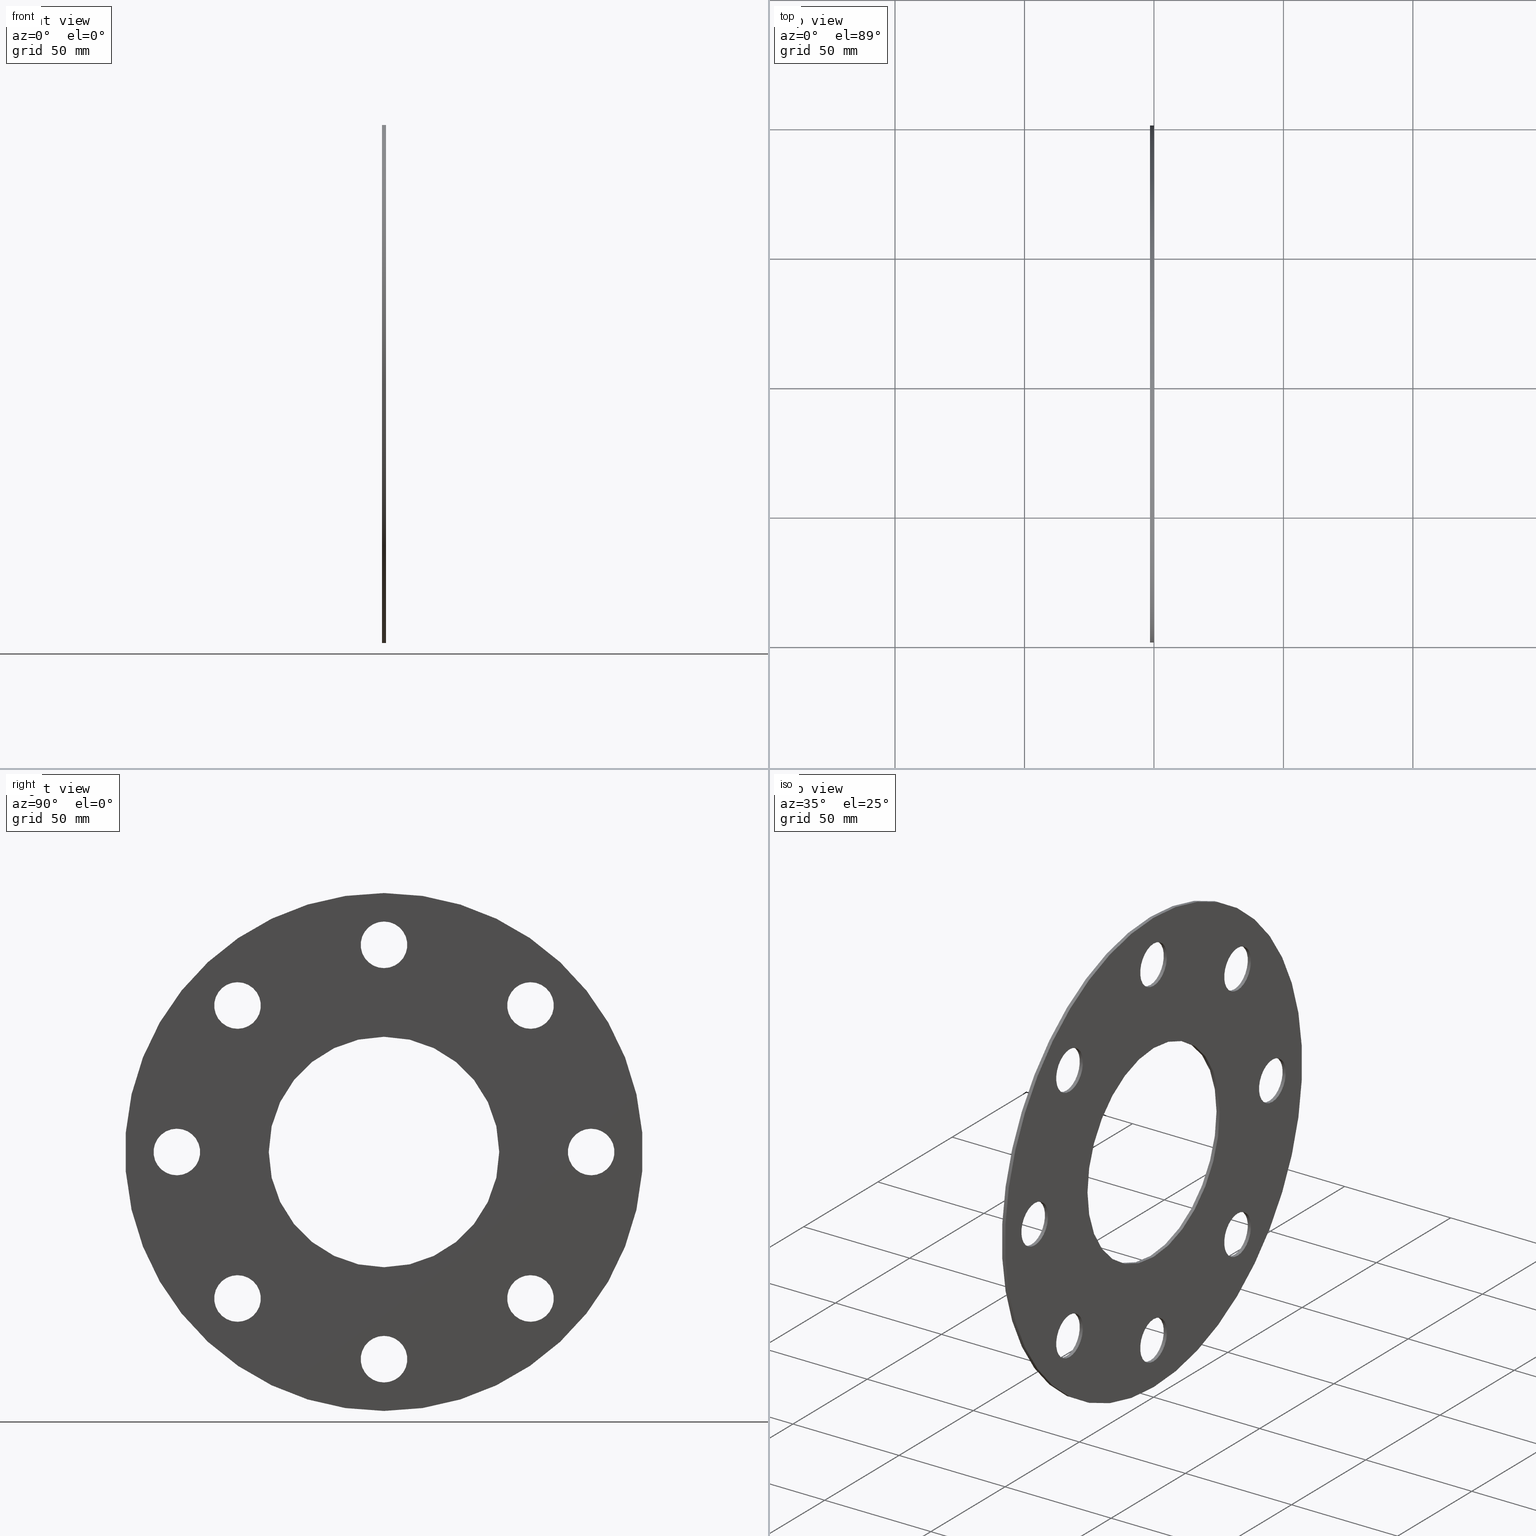
[diagram: canonical four-view strip — front | top / right | iso, engineering-drawing reading convention]
A machine part, canonical four-view strip (front | top / right | iso — engineering-drawing reading convention). The complete STEP part file that produces these views, byte-faithful:
ISO-10303-21;
HEADER;
FILE_DESCRIPTION (( 'STEP AP203' ),
    '1' );
FILE_NAME ('OEM-80NB-PN10-15_REV_.step',
    '2026-03-04T03:03:00',
    ( '' ),
    ( '' ),
    'SwSTEP 2.0',
    'SolidWorks 2025',
    '' );
FILE_SCHEMA (( 'CONFIG_CONTROL_DESIGN' ));
ENDSEC;

DATA;
#1 = ORIENTED_EDGE ( 'NONE', *, *, #417, .T. ) ;
#2 = CYLINDRICAL_SURFACE ( 'NONE', #568, 8.999999999999992895 ) ;
#3 = AXIS2_PLACEMENT_3D ( 'NONE', #327, #256, #462 ) ;
#4 = CARTESIAN_POINT ( 'NONE',  ( -1.500000000000000000, 0.000000000000000000, -44.50000000000000711 ) ) ;
#5 = CIRCLE ( 'NONE', #806, 9.000000000000001776 ) ;
#6 = EDGE_LOOP ( 'NONE', ( #812, #153 ) ) ;
#7 = CARTESIAN_POINT ( 'NONE',  ( -1.500000000000000000, -80.00000000000000000, 8.999999999999829470 ) ) ;
#8 = DIRECTION ( 'NONE',  ( 1.000000000000000000, 0.000000000000000000, 0.000000000000000000 ) ) ;
#9 = ORIENTED_EDGE ( 'NONE', *, *, #829, .F. ) ;
#10 = CARTESIAN_POINT ( 'NONE',  ( -1.500000000000000000, -1.466548965701370020E-13, 89.00000000000000000 ) ) ;
#11 = CARTESIAN_POINT ( 'NONE',  ( -1.500000000000000000, 56.56854249492391062, -65.56854249492369036 ) ) ;
#12 = EDGE_LOOP ( 'NONE', ( #265, #438 ) ) ;
#13 = EDGE_CURVE ( 'NONE', #336, #109, #191, .T. ) ;
#14 = CARTESIAN_POINT ( 'NONE',  ( 0.000000000000000000, -56.56854249492391773, 47.56854249492367614 ) ) ;
#15 = CARTESIAN_POINT ( 'NONE',  ( -1.500000000000000000, 56.56854249492369036, 56.56854249492390352 ) ) ;
#16 = VECTOR ( 'NONE', #821, 1000.000000000000000 ) ;
#17 = VECTOR ( 'NONE', #741, 1000.000000000000000 ) ;
#18 = CIRCLE ( 'NONE', #379, 9.000000000000001776 ) ;
#19 = ORIENTED_EDGE ( 'NONE', *, *, #240, .T. ) ;
#20 = ORIENTED_EDGE ( 'NONE', *, *, #644, .T. ) ;
#21 = EDGE_CURVE ( 'NONE', #712, #302, #502, .T. ) ;
#22 = DIRECTION ( 'NONE',  ( 1.000000000000000000, 0.000000000000000000, 0.000000000000000000 ) ) ;
#23 = FACE_OUTER_BOUND ( 'NONE', #53, .T. ) ;
#24 = COORDINATED_UNIVERSAL_TIME_OFFSET ( 10, 0, .AHEAD. ) ;
#25 = DIRECTION ( 'NONE',  ( 1.000000000000000000, 0.000000000000000000, 0.000000000000000000 ) ) ;
#26 = ADVANCED_FACE ( 'NONE', ( #746 ), #163, .F. ) ;
#27 = CARTESIAN_POINT ( 'NONE',  ( 0.000000000000000000, -80.00000000000000000, -1.663166132592763802E-13 ) ) ;
#28 = DESIGN_CONTEXT ( 'detailed design', #733, 'design' ) ;
#29 = CALENDAR_DATE ( 2026, 4, 3 ) ;
#30 = CARTESIAN_POINT ( 'NONE',  ( 0.000000000000000000, 80.00000000000000000, 9.000000000000145661 ) ) ;
#31 = ADVANCED_FACE ( 'NONE', ( #149 ), #400, .F. ) ;
#32 = AXIS2_PLACEMENT_3D ( 'NONE', #610, #369, #352 ) ;
#33 = DIRECTION ( 'NONE',  ( 1.000000000000000000, 0.000000000000000000, 0.000000000000000000 ) ) ;
#34 = VECTOR ( 'NONE', #510, 1000.000000000000000 ) ;
#35 = AXIS2_PLACEMENT_3D ( 'NONE', #96, #411, #406 ) ;
#36 = CARTESIAN_POINT ( 'NONE',  ( -1.500000000000000000, -56.56854249492368325, -47.56854249492391062 ) ) ;
#37 = FACE_OUTER_BOUND ( 'NONE', #544, .T. ) ;
#38 = EDGE_LOOP ( 'NONE', ( #9, #742, #482, #62 ) ) ;
#39 = LINE ( 'NONE', #169, #104 ) ;
#40 = CYLINDRICAL_SURFACE ( 'NONE', #791, 44.50000000000000711 ) ;
#41 = EDGE_LOOP ( 'NONE', ( #574, #492 ) ) ;
#42 = CARTESIAN_POINT ( 'NONE',  ( -1.500000000000000000, -56.56854249492368325, -65.56854249492391773 ) ) ;
#43 = CARTESIAN_POINT ( 'NONE',  ( -1.500000000000000000, 56.56854249492369036, 47.56854249492390352 ) ) ;
#44 = CIRCLE ( 'NONE', #229, 9.000000000000001776 ) ;
#45 = VERTEX_POINT ( 'NONE', #599 ) ;
#46 = CIRCLE ( 'NONE', #157, 8.999999999999996447 ) ;
#47 = CC_DESIGN_APPROVAL ( #312, ( #82 ) ) ;
#48 = CYLINDRICAL_SURFACE ( 'NONE', #74, 8.999999999999992895 ) ;
#49 = ADVANCED_FACE ( 'NONE', ( #23 ), #276, .F. ) ;
#50 = CARTESIAN_POINT ( 'NONE',  ( -1.500000000000000000, 5.449678256205721981E-15, 44.50000000000000711 ) ) ;
#51 = ORIENTED_EDGE ( 'NONE', *, *, #576, .F. ) ;
#52 = CARTESIAN_POINT ( 'NONE',  ( 0.000000000000000000, -56.56854249492391773, 56.56854249492367614 ) ) ;
#53 = EDGE_LOOP ( 'NONE', ( #545, #318, #154, #804 ) ) ;
#54 = DIRECTION ( 'NONE',  ( 0.000000000000000000, 0.000000000000000000, -1.000000000000000000 ) ) ;
#55 = EDGE_CURVE ( 'NONE', #496, #161, #541, .T. ) ;
#56 = VERTEX_POINT ( 'NONE', #427 ) ;
#57 = DIRECTION ( 'NONE',  ( 1.000000000000000000, 0.000000000000000000, 0.000000000000000000 ) ) ;
#58 = AXIS2_PLACEMENT_3D ( 'NONE', #198, #787, #659 ) ;
#59 = AXIS2_PLACEMENT_3D ( 'NONE', #558, #497, #690 ) ;
#60 = CALENDAR_DATE ( 2026, 4, 3 ) ;
#61 = AXIS2_PLACEMENT_3D ( 'NONE', #326, #720, #320 ) ;
#62 = ORIENTED_EDGE ( 'NONE', *, *, #165, .F. ) ;
#63 = CARTESIAN_POINT ( 'NONE',  ( -1.500000000000000000, -1.477570786893696184E-13, 71.00000000000001421 ) ) ;
#64 = CARTESIAN_POINT ( 'NONE',  ( 0.000000000000000000, 0.000000000000000000, 0.000000000000000000 ) ) ;
#65 = ORIENTED_EDGE ( 'NONE', *, *, #711, .F. ) ;
#66 = DIRECTION ( 'NONE',  ( 1.000000000000000000, 0.000000000000000000, 0.000000000000000000 ) ) ;
#67 = EDGE_CURVE ( 'NONE', #226, #56, #392, .T. ) ;
#68 = CARTESIAN_POINT ( 'NONE',  ( 0.000000000000000000, -80.00000000000000000, 8.999999999999829470 ) ) ;
#69 = ORIENTED_EDGE ( 'NONE', *, *, #376, .T. ) ;
#70 = CARTESIAN_POINT ( 'NONE',  ( -1.500000000000000000, 0.000000000000000000, 0.000000000000000000 ) ) ;
#71 = AXIS2_PLACEMENT_3D ( 'NONE', #814, #486, #239 ) ;
#72 = APPROVAL ( #698, 'UNSPECIFIED' ) ;
#73 = CARTESIAN_POINT ( 'NONE',  ( 0.000000000000000000, 0.000000000000000000, 0.000000000000000000 ) ) ;
#74 = AXIS2_PLACEMENT_3D ( 'NONE', #706, #234, #634 ) ;
#75 = AXIS2_PLACEMENT_3D ( 'NONE', #648, #585, #662 ) ;
#76 = EDGE_LOOP ( 'NONE', ( #172, #830 ) ) ;
#77 = CYLINDRICAL_SURFACE ( 'NONE', #75, 8.999999999999994671 ) ;
#78 = CARTESIAN_POINT ( 'NONE',  ( -1.500000000000000000, 1.595945597898662527E-13, -88.99999999999998579 ) ) ;
#79 = VERTEX_POINT ( 'NONE', #358 ) ;
#80 = DIRECTION ( 'NONE',  ( 1.000000000000000000, 0.000000000000000000, 0.000000000000000000 ) ) ;
#81 = LINE ( 'NONE', #649, #566 ) ;
#82 = PRODUCT_DEFINITION ( 'UNKNOWN', '', #449, #28 ) ;
#83 = ORIENTED_EDGE ( 'NONE', *, *, #644, .F. ) ;
#84 = EDGE_LOOP ( 'NONE', ( #548, #146, #247, #615 ) ) ;
#85 = CARTESIAN_POINT ( 'NONE',  ( -1.500000000000000000, -1.477570786893696184E-13, 71.00000000000001421 ) ) ;
#86 = CARTESIAN_POINT ( 'NONE',  ( -1.500000000000000000, -56.56854249492391773, 56.56854249492367614 ) ) ;
#87 = VECTOR ( 'NONE', #398, 1000.000000000000000 ) ;
#88 = CIRCLE ( 'NONE', #321, 9.000000000000001776 ) ;
#89 = CC_DESIGN_APPROVAL ( #72, ( #623 ) ) ;
#90 = DIRECTION ( 'NONE',  ( 0.000000000000000000, 0.000000000000000000, -1.000000000000000000 ) ) ;
#91 = CC_DESIGN_PERSON_AND_ORGANIZATION_ASSIGNMENT ( #763, #310, ( #449 ) ) ;
#92 =( NAMED_UNIT ( * ) PLANE_ANGLE_UNIT ( ) SI_UNIT ( $, .RADIAN. ) );
#93 = LINE ( 'NONE', #291, #17 ) ;
#94 = CARTESIAN_POINT ( 'NONE',  ( -1.500000000000000000, 1.595945597898662527E-13, -79.99999999999998579 ) ) ;
#95 = ORIENTED_EDGE ( 'NONE', *, *, #621, .T. ) ;
#96 = CARTESIAN_POINT ( 'NONE',  ( -1.500000000000000000, 0.000000000000000000, 0.000000000000000000 ) ) ;
#97 = FACE_BOUND ( 'NONE', #702, .T. ) ;
#98 = EDGE_CURVE ( 'NONE', #336, #113, #685, .T. ) ;
#99 = VERTEX_POINT ( 'NONE', #547 ) ;
#100 = MANIFOLD_SOLID_BREP ( 'Boss-Extrude1', #348 ) ;
#101 = DIRECTION ( 'NONE',  ( 0.000000000000000000, 0.000000000000000000, -1.000000000000000000 ) ) ;
#102 = CIRCLE ( 'NONE', #407, 8.999999999999994671 ) ;
#103 = CARTESIAN_POINT ( 'NONE',  ( 0.000000000000000000, 0.000000000000000000, 0.000000000000000000 ) ) ;
#104 = VECTOR ( 'NONE', #553, 1000.000000000000000 ) ;
#105 = APPROVAL_PERSON_ORGANIZATION ( #708, #72, #759 ) ;
#106 = LINE ( 'NONE', #748, #792 ) ;
#107 = DIRECTION ( 'NONE',  ( 1.000000000000000000, 0.000000000000000000, 0.000000000000000000 ) ) ;
#108 = ADVANCED_FACE ( 'NONE', ( #437 ), #699, .T. ) ;
#109 = VERTEX_POINT ( 'NONE', #235 ) ;
#110 = FACE_BOUND ( 'NONE', #342, .T. ) ;
#111 = CARTESIAN_POINT ( 'NONE',  ( -1.500000000000000000, 1.595945597898662527E-13, -88.99999999999998579 ) ) ;
#112 = ADVANCED_FACE ( 'NONE', ( #760 ), #253, .F. ) ;
#113 = VERTEX_POINT ( 'NONE', #292 ) ;
#114 = DIRECTION ( 'NONE',  ( 1.000000000000000000, 0.000000000000000000, 0.000000000000000000 ) ) ;
#115 = DIRECTION ( 'NONE',  ( 1.000000000000000000, 0.000000000000000000, 0.000000000000000000 ) ) ;
#116 = VECTOR ( 'NONE', #264, 1000.000000000000000 ) ;
#117 = ORIENTED_EDGE ( 'NONE', *, *, #517, .T. ) ;
#118 = VECTOR ( 'NONE', #619, 1000.000000000000000 ) ;
#119 = DIRECTION ( 'NONE',  ( 1.000000000000000000, 0.000000000000000000, 0.000000000000000000 ) ) ;
#120 = DATE_AND_TIME ( #174, #639 ) ;
#121 = CARTESIAN_POINT ( 'NONE',  ( -1.500000000000000000, 0.000000000000000000, 0.000000000000000000 ) ) ;
#122 = ORIENTED_EDGE ( 'NONE', *, *, #195, .F. ) ;
#123 = CARTESIAN_POINT ( 'NONE',  ( 0.000000000000000000, -56.56854249492391773, 56.56854249492367614 ) ) ;
#124 = EDGE_CURVE ( 'NONE', #345, #190, #591, .T. ) ;
#125 = ORIENTED_EDGE ( 'NONE', *, *, #249, .T. ) ;
#126 = DIRECTION ( 'NONE',  ( 0.000000000000000000, 0.000000000000000000, -1.000000000000000000 ) ) ;
#127 = APPROVAL_DATE_TIME ( #824, #632 ) ;
#128 = VERTEX_POINT ( 'NONE', #50 ) ;
#129 = DIRECTION ( 'NONE',  ( 0.000000000000000000, 0.000000000000000000, -1.000000000000000000 ) ) ;
#130 = AXIS2_PLACEMENT_3D ( 'NONE', #184, #505, #129 ) ;
#131 = CIRCLE ( 'NONE', #596, 8.999999999999992895 ) ;
#132 = SECURITY_CLASSIFICATION_LEVEL ( 'unclassified' ) ;
#133 = VERTEX_POINT ( 'NONE', #288 ) ;
#134 = FACE_BOUND ( 'NONE', #518, .T. ) ;
#135 = DIRECTION ( 'NONE',  ( 1.000000000000000000, 0.000000000000000000, 0.000000000000000000 ) ) ;
#136 = VERTEX_POINT ( 'NONE', #175 ) ;
#137 = EDGE_CURVE ( 'NONE', #700, #448, #635, .T. ) ;
#138 = DIRECTION ( 'NONE',  ( 0.000000000000000000, 0.000000000000000000, -1.000000000000000000 ) ) ;
#139 = LINE ( 'NONE', #323, #751 ) ;
#140 = ORIENTED_EDGE ( 'NONE', *, *, #285, .T. ) ;
#141 = DIRECTION ( 'NONE',  ( 0.000000000000000000, 0.000000000000000000, -1.000000000000000000 ) ) ;
#142 = AXIS2_PLACEMENT_3D ( 'NONE', #674, #33, #729 ) ;
#143 = DIRECTION ( 'NONE',  ( 0.000000000000000000, 0.000000000000000000, -1.000000000000000000 ) ) ;
#144 = ADVANCED_FACE ( 'NONE', ( #778 ), #841, .F. ) ;
#145 = AXIS2_PLACEMENT_3D ( 'NONE', #354, #546, #101 ) ;
#146 = ORIENTED_EDGE ( 'NONE', *, *, #684, .T. ) ;
#147 = FACE_BOUND ( 'NONE', #12, .T. ) ;
#148 = CARTESIAN_POINT ( 'NONE',  ( -1.500000000000000000, -56.56854249492391773, 47.56854249492367614 ) ) ;
#149 = FACE_OUTER_BOUND ( 'NONE', #453, .T. ) ;
#150 = VERTEX_POINT ( 'NONE', #617 ) ;
#151 = CARTESIAN_POINT ( 'NONE',  ( 0.000000000000000000, 80.00000000000000000, 1.526556658859590243E-13 ) ) ;
#152 = CARTESIAN_POINT ( 'NONE',  ( 0.000000000000000000, 80.00000000000000000, 1.526556658859590243E-13 ) ) ;
#153 = ORIENTED_EDGE ( 'NONE', *, *, #494, .T. ) ;
#154 = ORIENTED_EDGE ( 'NONE', *, *, #228, .T. ) ;
#155 = CARTESIAN_POINT ( 'NONE',  ( 0.000000000000000000, 0.000000000000000000, 0.000000000000000000 ) ) ;
#156 = AXIS2_PLACEMENT_3D ( 'NONE', #15, #598, #455 ) ;
#157 = AXIS2_PLACEMENT_3D ( 'NONE', #397, #572, #141 ) ;
#158 = ORIENTED_EDGE ( 'NONE', *, *, #412, .T. ) ;
#159 = EDGE_CURVE ( 'NONE', #487, #418, #295, .T. ) ;
#160 = DIRECTION ( 'NONE',  ( 0.000000000000000000, 0.000000000000000000, -1.000000000000000000 ) ) ;
#161 = VERTEX_POINT ( 'NONE', #43 ) ;
#162 = DIRECTION ( 'NONE',  ( 0.000000000000000000, 0.000000000000000000, -1.000000000000000000 ) ) ;
#163 = CYLINDRICAL_SURFACE ( 'NONE', #142, 9.000000000000001776 ) ;
#164 = FACE_BOUND ( 'NONE', #500, .T. ) ;
#165 = EDGE_CURVE ( 'NONE', #79, #712, #679, .T. ) ;
#166 = AXIS2_PLACEMENT_3D ( 'NONE', #73, #210, #582 ) ;
#167 = DIRECTION ( 'NONE',  ( 0.000000000000000000, 0.000000000000000000, -1.000000000000000000 ) ) ;
#168 = VERTEX_POINT ( 'NONE', #491 ) ;
#169 = CARTESIAN_POINT ( 'NONE',  ( -1.500000000000000000, -56.56854249492391773, 65.56854249492367614 ) ) ;
#170 = ADVANCED_FACE ( 'NONE', ( #37 ), #40, .F. ) ;
#171 = CARTESIAN_POINT ( 'NONE',  ( -1.500000000000000000, 56.56854249492369036, 65.56854249492391773 ) ) ;
#172 = ORIENTED_EDGE ( 'NONE', *, *, #388, .F. ) ;
#173 = DIRECTION ( 'NONE',  ( 0.000000000000000000, 0.000000000000000000, -1.000000000000000000 ) ) ;
#174 = CALENDAR_DATE ( 2026, 4, 3 ) ;
#175 = CARTESIAN_POINT ( 'NONE',  ( -1.500000000000000000, 56.56854249492391062, -47.56854249492367614 ) ) ;
#176 = ORIENTED_EDGE ( 'NONE', *, *, #825, .T. ) ;
#177 = DIRECTION ( 'NONE',  ( 1.000000000000000000, 0.000000000000000000, 0.000000000000000000 ) ) ;
#178 = APPROVAL_STATUS ( 'not_yet_approved' ) ;
#179 = CARTESIAN_POINT ( 'NONE',  ( 0.000000000000000000, 56.56854249492391062, -65.56854249492369036 ) ) ;
#180 = AXIS2_PLACEMENT_3D ( 'NONE', #556, #495, #811 ) ;
#181 = ORIENTED_EDGE ( 'NONE', *, *, #656, .T. ) ;
#182 = VECTOR ( 'NONE', #197, 1000.000000000000000 ) ;
#183 = CC_DESIGN_DATE_AND_TIME_ASSIGNMENT ( #739, #498, ( #82 ) ) ;
#184 = CARTESIAN_POINT ( 'NONE',  ( 0.000000000000000000, 0.000000000000000000, 0.000000000000000000 ) ) ;
#185 = ORIENTED_EDGE ( 'NONE', *, *, #527, .T. ) ;
#186 = FACE_OUTER_BOUND ( 'NONE', #521, .T. ) ;
#187 = ORIENTED_EDGE ( 'NONE', *, *, #350, .F. ) ;
#188 = DIRECTION ( 'NONE',  ( 1.000000000000000000, 0.000000000000000000, 0.000000000000000000 ) ) ;
#189 = PERSON_AND_ORGANIZATION_ROLE ( 'classification_officer' ) ;
#190 = VERTEX_POINT ( 'NONE', #179 ) ;
#191 = CIRCLE ( 'NONE', #650, 8.999999999999994671 ) ;
#192 = LINE ( 'NONE', #387, #182 ) ;
#193 = CIRCLE ( 'NONE', #408, 100.0000000000000000 ) ;
#194 = DIRECTION ( 'NONE',  ( 0.000000000000000000, 0.000000000000000000, -1.000000000000000000 ) ) ;
#195 = EDGE_CURVE ( 'NONE', #496, #133, #692, .T. ) ;
#196 = ORIENTED_EDGE ( 'NONE', *, *, #204, .T. ) ;
#197 = DIRECTION ( 'NONE',  ( 1.000000000000000000, 0.000000000000000000, 0.000000000000000000 ) ) ;
#198 = CARTESIAN_POINT ( 'NONE',  ( 0.000000000000000000, 1.595945597898662527E-13, -79.99999999999998579 ) ) ;
#199 = ORIENTED_EDGE ( 'NONE', *, *, #836, .F. ) ;
#200 = FACE_BOUND ( 'NONE', #284, .T. ) ;
#201 = DIRECTION ( 'NONE',  ( 0.000000000000000000, 0.000000000000000000, -1.000000000000000000 ) ) ;
#202 = ORIENTED_EDGE ( 'NONE', *, *, #583, .T. ) ;
#203 = DIRECTION ( 'NONE',  ( 1.000000000000000000, 0.000000000000000000, 0.000000000000000000 ) ) ;
#204 = EDGE_CURVE ( 'NONE', #109, #336, #243, .T. ) ;
#205 = LINE ( 'NONE', #516, #87 ) ;
#206 = AXIS2_PLACEMENT_3D ( 'NONE', #493, #429, #703 ) ;
#207 = ORIENTED_EDGE ( 'NONE', *, *, #306, .T. ) ;
#208 = FACE_BOUND ( 'NONE', #244, .T. ) ;
#209 = CC_DESIGN_PERSON_AND_ORGANIZATION_ASSIGNMENT ( #820, #238, ( #449 ) ) ;
#210 = DIRECTION ( 'NONE',  ( 1.000000000000000000, 0.000000000000000000, 0.000000000000000000 ) ) ;
#211 = APPLICATION_CONTEXT ( 'configuration controlled 3d designs of mechanical parts and assemblies' ) ;
#212 = DIRECTION ( 'NONE',  ( 1.000000000000000000, 0.000000000000000000, 0.000000000000000000 ) ) ;
#213 = VERTEX_POINT ( 'NONE', #301 ) ;
#214 = COORDINATED_UNIVERSAL_TIME_OFFSET ( 10, 0, .AHEAD. ) ;
#215 = FACE_BOUND ( 'NONE', #76, .T. ) ;
#216 = DIRECTION ( 'NONE',  ( 0.000000000000000000, 0.000000000000000000, -1.000000000000000000 ) ) ;
#217 = ORIENTED_EDGE ( 'NONE', *, *, #628, .T. ) ;
#218 = APPLICATION_PROTOCOL_DEFINITION ( 'international standard', 'config_control_design', 1994, #733 ) ;
#219 = CARTESIAN_POINT ( 'NONE',  ( 0.000000000000000000, 56.56854249492369036, 56.56854249492390352 ) ) ;
#220 = EDGE_LOOP ( 'NONE', ( #187, #444 ) ) ;
#221 = ORIENTED_EDGE ( 'NONE', *, *, #694, .F. ) ;
#222 = CYLINDRICAL_SURFACE ( 'NONE', #638, 9.000000000000001776 ) ;
#223 = ORIENTED_EDGE ( 'NONE', *, *, #67, .F. ) ;
#224 = DIRECTION ( 'NONE',  ( 0.000000000000000000, 0.000000000000000000, -1.000000000000000000 ) ) ;
#225 = DIRECTION ( 'NONE',  ( 1.000000000000000000, 0.000000000000000000, 0.000000000000000000 ) ) ;
#226 = VERTEX_POINT ( 'NONE', #364 ) ;
#227 = FACE_OUTER_BOUND ( 'NONE', #396, .T. ) ;
#228 = EDGE_CURVE ( 'NONE', #625, #113, #102, .T. ) ;
#229 = AXIS2_PLACEMENT_3D ( 'NONE', #86, #718, #655 ) ;
#230 = CIRCLE ( 'NONE', #542, 8.999999999999996447 ) ;
#231 = DIRECTION ( 'NONE',  ( 0.000000000000000000, 0.000000000000000000, -1.000000000000000000 ) ) ;
#232 = VECTOR ( 'NONE', #263, 1000.000000000000000 ) ;
#233 = EDGE_LOOP ( 'NONE', ( #771, #465 ) ) ;
#234 = DIRECTION ( 'NONE',  ( 1.000000000000000000, 0.000000000000000000, 0.000000000000000000 ) ) ;
#235 = CARTESIAN_POINT ( 'NONE',  ( -1.500000000000000000, 1.606967419090988690E-13, -71.00000000000000000 ) ) ;
#236 = ORIENTED_EDGE ( 'NONE', *, *, #383, .T. ) ;
#237 = DIRECTION ( 'NONE',  ( 0.000000000000000000, 0.000000000000000000, -1.000000000000000000 ) ) ;
#238 = PERSON_AND_ORGANIZATION_ROLE ( 'creator' ) ;
#239 = DIRECTION ( 'NONE',  ( 0.000000000000000000, 0.000000000000000000, -1.000000000000000000 ) ) ;
#240 = EDGE_CURVE ( 'NONE', #150, #45, #319, .T. ) ;
#241 = EDGE_LOOP ( 'NONE', ( #293, #641 ) ) ;
#242 = CYLINDRICAL_SURFACE ( 'NONE', #779, 8.999999999999996447 ) ;
#243 = CIRCLE ( 'NONE', #723, 8.999999999999994671 ) ;
#244 = EDGE_LOOP ( 'NONE', ( #202, #657 ) ) ;
#245 = AXIS2_PLACEMENT_3D ( 'NONE', #762, #445, #246 ) ;
#246 = DIRECTION ( 'NONE',  ( 0.000000000000000000, 0.000000000000000000, -1.000000000000000000 ) ) ;
#247 = ORIENTED_EDGE ( 'NONE', *, *, #576, .T. ) ;
#248 = DIRECTION ( 'NONE',  ( 1.000000000000000000, 0.000000000000000000, 0.000000000000000000 ) ) ;
#249 = EDGE_CURVE ( 'NONE', #113, #625, #832, .T. ) ;
#250 = EDGE_LOOP ( 'NONE', ( #775, #633, #185, #404 ) ) ;
#251 = DIRECTION ( 'NONE',  ( 0.000000000000000000, 0.000000000000000000, -1.000000000000000000 ) ) ;
#252 = ADVANCED_FACE ( 'NONE', ( #260 ), #385, .F. ) ;
#253 = CYLINDRICAL_SURFACE ( 'NONE', #32, 8.999999999999996447 ) ;
#254 = EDGE_LOOP ( 'NONE', ( #552, #20, #693, #667 ) ) ;
#255 = FACE_BOUND ( 'NONE', #419, .T. ) ;
#256 = DIRECTION ( 'NONE',  ( 1.000000000000000000, 0.000000000000000000, 0.000000000000000000 ) ) ;
#257 = EDGE_CURVE ( 'NONE', #660, #168, #44, .T. ) ;
#258 = ORIENTED_EDGE ( 'NONE', *, *, #784, .T. ) ;
#259 = CARTESIAN_POINT ( 'NONE',  ( -1.500000000000000000, 80.00000000000000000, 1.526556658859590243E-13 ) ) ;
#260 = FACE_OUTER_BOUND ( 'NONE', #386, .T. ) ;
#261 = ADVANCED_FACE ( 'NONE', ( #731 ), #577, .T. ) ;
#262 = ORIENTED_EDGE ( 'NONE', *, *, #98, .T. ) ;
#263 = DIRECTION ( 'NONE',  ( 1.000000000000000000, 0.000000000000000000, 0.000000000000000000 ) ) ;
#264 = DIRECTION ( 'NONE',  ( 1.000000000000000000, 0.000000000000000000, 0.000000000000000000 ) ) ;
#265 = ORIENTED_EDGE ( 'NONE', *, *, #721, .T. ) ;
#266 = FACE_BOUND ( 'NONE', #6, .T. ) ;
#267 = AXIS2_PLACEMENT_3D ( 'NONE', #750, #499, #167 ) ;
#268 = AXIS2_PLACEMENT_3D ( 'NONE', #770, #766, #570 ) ;
#269 = CARTESIAN_POINT ( 'NONE',  ( 0.000000000000000000, 56.56854249492391062, -56.56854249492368325 ) ) ;
#270 = CIRCLE ( 'NONE', #754, 8.999999999999994671 ) ;
#271 = LOCAL_TIME ( 14, 3, 0.000000000000000000, #24 ) ;
#272 = DIRECTION ( 'NONE',  ( 1.000000000000000000, 0.000000000000000000, 0.000000000000000000 ) ) ;
#273 = ORIENTED_EDGE ( 'NONE', *, *, #195, .T. ) ;
#274 = APPROVAL_STATUS ( 'not_yet_approved' ) ;
#275 = CARTESIAN_POINT ( 'NONE',  ( 0.000000000000000000, -56.56854249492391773, 65.56854249492367614 ) ) ;
#276 = CYLINDRICAL_SURFACE ( 'NONE', #435, 8.999999999999994671 ) ;
#277 = CALENDAR_DATE ( 2026, 4, 3 ) ;
#278 = CARTESIAN_POINT ( 'NONE',  ( -1.500000000000000000, 56.56854249492369036, 65.56854249492391773 ) ) ;
#279 = ADVANCED_FACE ( 'NONE', ( #523 ), #389, .F. ) ;
#280 = ORIENTED_EDGE ( 'NONE', *, *, #602, .F. ) ;
#281 =( NAMED_UNIT ( * ) SI_UNIT ( $, .STERADIAN. ) SOLID_ANGLE_UNIT ( ) );
#282 = PLANE ( 'NONE',  #833 ) ;
#283 = AXIS2_PLACEMENT_3D ( 'NONE', #642, #439, #126 ) ;
#284 = EDGE_LOOP ( 'NONE', ( #669, #514 ) ) ;
#285 = EDGE_CURVE ( 'NONE', #743, #504, #81, .T. ) ;
#286 = ORIENTED_EDGE ( 'NONE', *, *, #240, .F. ) ;
#287 = FACE_OUTER_BOUND ( 'NONE', #84, .T. ) ;
#288 = CARTESIAN_POINT ( 'NONE',  ( 0.000000000000000000, 56.56854249492369036, 65.56854249492391773 ) ) ;
#289 = EDGE_CURVE ( 'NONE', #660, #793, #402, .T. ) ;
#290 = EDGE_LOOP ( 'NONE', ( #378, #539, #414, #816 ) ) ;
#291 = CARTESIAN_POINT ( 'NONE',  ( -1.500000000000000000, 1.606967419090988690E-13, -71.00000000000000000 ) ) ;
#292 = CARTESIAN_POINT ( 'NONE',  ( 0.000000000000000000, 1.595945597898662527E-13, -88.99999999999998579 ) ) ;
#293 = ORIENTED_EDGE ( 'NONE', *, *, #640, .F. ) ;
#294 = CARTESIAN_POINT ( 'NONE',  ( 0.000000000000000000, -1.466548965701370020E-13, 89.00000000000000000 ) ) ;
#295 = CIRCLE ( 'NONE', #267, 9.000000000000001776 ) ;
#296 = CARTESIAN_POINT ( 'NONE',  ( -1.500000000000000000, 1.595945597898662527E-13, -79.99999999999998579 ) ) ;
#297 = CIRCLE ( 'NONE', #710, 8.999999999999996447 ) ;
#298 = ORIENTED_EDGE ( 'NONE', *, *, #21, .F. ) ;
#299 = CARTESIAN_POINT ( 'NONE',  ( 0.000000000000000000, -1.477570786893696184E-13, 80.00000000000000000 ) ) ;
#300 = EDGE_CURVE ( 'NONE', #769, #504, #421, .T. ) ;
#301 = CARTESIAN_POINT ( 'NONE',  ( -1.500000000000000000, 1.224646799147353217E-14, 100.0000000000000000 ) ) ;
#302 = VERTEX_POINT ( 'NONE', #68 ) ;
#303 = FACE_OUTER_BOUND ( 'NONE', #337, .T. ) ;
#304 = VERTEX_POINT ( 'NONE', #663 ) ;
#305 = CARTESIAN_POINT ( 'NONE',  ( -1.500000000000000000, 0.000000000000000000, 0.000000000000000000 ) ) ;
#306 = EDGE_CURVE ( 'NONE', #487, #56, #139, .T. ) ;
#307 = VERTEX_POINT ( 'NONE', #799 ) ;
#308 = AXIS2_PLACEMENT_3D ( 'NONE', #472, #609, #605 ) ;
#309 = CARTESIAN_POINT ( 'NONE',  ( -1.500000000000000000, -1.477570786893696184E-13, 80.00000000000000000 ) ) ;
#310 = PERSON_AND_ORGANIZATION_ROLE ( 'design_supplier' ) ;
#311 = EDGE_LOOP ( 'NONE', ( #652, #757, #732, #569 ) ) ;
#312 = APPROVAL ( #274, 'UNSPECIFIED' ) ;
#313 = CARTESIAN_POINT ( 'NONE',  ( -1.500000000000000000, -80.00000000000000000, -1.663166132592763802E-13 ) ) ;
#314 = DIRECTION ( 'NONE',  ( 1.000000000000000000, 0.000000000000000000, 0.000000000000000000 ) ) ;
#315 = VERTEX_POINT ( 'NONE', #275 ) ;
#316 = FACE_BOUND ( 'NONE', #561, .T. ) ;
#317 = FACE_OUTER_BOUND ( 'NONE', #643, .T. ) ;
#318 = ORIENTED_EDGE ( 'NONE', *, *, #399, .T. ) ;
#319 = CIRCLE ( 'NONE', #696, 44.50000000000000711 ) ;
#320 = DIRECTION ( 'NONE',  ( 0.000000000000000000, 0.000000000000000000, -1.000000000000000000 ) ) ;
#321 = AXIS2_PLACEMENT_3D ( 'NONE', #52, #248, #507 ) ;
#322 = APPROVAL_PERSON_ORGANIZATION ( #774, #632, #559 ) ;
#323 = CARTESIAN_POINT ( 'NONE',  ( -1.500000000000000000, -56.56854249492368325, -65.56854249492391773 ) ) ;
#324 = CC_DESIGN_PERSON_AND_ORGANIZATION_ASSIGNMENT ( #338, #475, ( #82 ) ) ;
#325 = EDGE_LOOP ( 'NONE', ( #611, #365 ) ) ;
#326 = CARTESIAN_POINT ( 'NONE',  ( -1.500000000000000000, -1.477570786893696184E-13, 80.00000000000000000 ) ) ;
#327 = CARTESIAN_POINT ( 'NONE',  ( -1.500000000000000000, 1.595945597898662527E-13, -79.99999999999998579 ) ) ;
#328 = ORIENTED_EDGE ( 'NONE', *, *, #21, .T. ) ;
#329 = CARTESIAN_POINT ( 'NONE',  ( 0.000000000000000000, -1.477570786893696184E-13, 71.00000000000001421 ) ) ;
#330 = CARTESIAN_POINT ( 'NONE',  ( 0.000000000000000000, 56.56854249492391062, -47.56854249492367614 ) ) ;
#331 = CARTESIAN_POINT ( 'NONE',  ( -1.500000000000000000, -1.477570786893696184E-13, 80.00000000000000000 ) ) ;
#332 = ORIENTED_EDGE ( 'NONE', *, *, #614, .F. ) ;
#333 = VECTOR ( 'NONE', #714, 1000.000000000000000 ) ;
#334 = AXIS2_PLACEMENT_3D ( 'NONE', #123, #627, #823 ) ;
#335 = DIRECTION ( 'NONE',  ( 0.000000000000000000, 0.000000000000000000, -1.000000000000000000 ) ) ;
#336 = VERTEX_POINT ( 'NONE', #78 ) ;
#337 = EDGE_LOOP ( 'NONE', ( #752, #221, #470, #328 ) ) ;
#338 = PERSON_AND_ORGANIZATION ( #626, #794 ) ;
#339 = EDGE_CURVE ( 'NONE', #448, #700, #375, .T. ) ;
#340 = DIRECTION ( 'NONE',  ( 1.000000000000000000, 0.000000000000000000, 0.000000000000000000 ) ) ;
#341 = ORIENTED_EDGE ( 'NONE', *, *, #137, .F. ) ;
#342 = EDGE_LOOP ( 'NONE', ( #524, #705 ) ) ;
#343 = CC_DESIGN_DATE_AND_TIME_ASSIGNMENT ( #434, #374, ( #623 ) ) ;
#344 = CARTESIAN_POINT ( 'NONE',  ( 0.000000000000000000, 1.224646799147353217E-14, 100.0000000000000000 ) ) ;
#345 = VERTEX_POINT ( 'NONE', #330 ) ;
#346 = APPLICATION_PROTOCOL_DEFINITION ( 'international standard', 'config_control_design', 1994, #211 ) ;
#347 = CARTESIAN_POINT ( 'NONE',  ( -1.500000000000000000, 56.56854249492369036, 47.56854249492390352 ) ) ;
#348 = CLOSED_SHELL ( 'NONE', ( #736, #468, #112, #49, #463, #549, #26, #474, #252, #261, #108, #809, #443, #537, #170, #279, #805, #144, #367, #672, #773, #31 ) ) ;
#349 = CIRCLE ( 'NONE', #308, 44.50000000000000711 ) ;
#350 = EDGE_CURVE ( 'NONE', #390, #456, #362, .T. ) ;
#351 = LOCAL_TIME ( 14, 3, 0.000000000000000000, #508 ) ;
#352 = DIRECTION ( 'NONE',  ( 0.000000000000000000, 0.000000000000000000, -1.000000000000000000 ) ) ;
#353 = ORIENTED_EDGE ( 'NONE', *, *, #554, .F. ) ;
#354 = CARTESIAN_POINT ( 'NONE',  ( -1.500000000000000000, -56.56854249492391773, 56.56854249492367614 ) ) ;
#355 = CARTESIAN_POINT ( 'NONE',  ( -1.500000000000000000, 0.000000000000000000, 0.000000000000000000 ) ) ;
#356 = ORIENTED_EDGE ( 'NONE', *, *, #440, .T. ) ;
#357 = CARTESIAN_POINT ( 'NONE',  ( -1.500000000000000000, -56.56854249492368325, -56.56854249492391062 ) ) ;
#358 = CARTESIAN_POINT ( 'NONE',  ( -1.500000000000000000, -80.00000000000000000, -9.000000000000161648 ) ) ;
#359 = VERTEX_POINT ( 'NONE', #451 ) ;
#360 = EDGE_CURVE ( 'NONE', #307, #150, #458, .T. ) ;
#361 = DIRECTION ( 'NONE',  ( 0.000000000000000000, 0.000000000000000000, -1.000000000000000000 ) ) ;
#362 = CIRCLE ( 'NONE', #803, 8.999999999999992895 ) ;
#363 = CIRCLE ( 'NONE', #682, 9.000000000000007105 ) ;
#364 = CARTESIAN_POINT ( 'NONE',  ( 0.000000000000000000, -56.56854249492368325, -47.56854249492391062 ) ) ;
#365 = ORIENTED_EDGE ( 'NONE', *, *, #829, .T. ) ;
#366 = DIRECTION ( 'NONE',  ( 1.000000000000000000, 0.000000000000000000, 0.000000000000000000 ) ) ;
#367 = ADVANCED_FACE ( 'NONE', ( #317 ), #590, .F. ) ;
#368 = SHAPE_DEFINITION_REPRESENTATION ( #666, #597 ) ;
#369 = DIRECTION ( 'NONE',  ( 1.000000000000000000, 0.000000000000000000, 0.000000000000000000 ) ) ;
#370 = ORIENTED_EDGE ( 'NONE', *, *, #711, .T. ) ;
#371 = DIRECTION ( 'NONE',  ( 1.000000000000000000, 0.000000000000000000, 0.000000000000000000 ) ) ;
#372 = ORIENTED_EDGE ( 'NONE', *, *, #721, .F. ) ;
#373 = DIRECTION ( 'NONE',  ( 0.000000000000000000, 0.000000000000000000, -1.000000000000000000 ) ) ;
#374 = DATE_TIME_ROLE ( 'classification_date' ) ;
#375 = CIRCLE ( 'NONE', #166, 100.0000000000000000 ) ;
#376 = EDGE_CURVE ( 'NONE', #584, #190, #586, .T. ) ;
#377 = AXIS2_PLACEMENT_3D ( 'NONE', #269, #796, #467 ) ;
#378 = ORIENTED_EDGE ( 'NONE', *, *, #412, .F. ) ;
#379 = AXIS2_PLACEMENT_3D ( 'NONE', #460, #80, #658 ) ;
#380 = CIRCLE ( 'NONE', #35, 44.50000000000000711 ) ;
#381 = CARTESIAN_POINT ( 'NONE',  ( 0.000000000000000000, -80.00000000000000000, -1.663166132592763802E-13 ) ) ;
#382 = ORIENTED_EDGE ( 'NONE', *, *, #289, .T. ) ;
#383 = EDGE_CURVE ( 'NONE', #213, #448, #205, .T. ) ;
#384 = FACE_BOUND ( 'NONE', #441, .T. ) ;
#385 = CYLINDRICAL_SURFACE ( 'NONE', #156, 9.000000000000001776 ) ;
#386 = EDGE_LOOP ( 'NONE', ( #781, #273, #258, #580 ) ) ;
#387 = CARTESIAN_POINT ( 'NONE',  ( -1.500000000000000000, 56.56854249492391062, -47.56854249492367614 ) ) ;
#388 = EDGE_CURVE ( 'NONE', #190, #345, #461, .T. ) ;
#389 = CYLINDRICAL_SURFACE ( 'NONE', #707, 9.000000000000001776 ) ;
#390 = VERTEX_POINT ( 'NONE', #783 ) ;
#391 = PRODUCT ( 'OEM-80NB-PN10-15_REV_', 'OEM-80NB-PN10-15_REV_', '', ( #671 ) ) ;
#392 = CIRCLE ( 'NONE', #578, 9.000000000000001776 ) ;
#393 = CARTESIAN_POINT ( 'NONE',  ( 0.000000000000000000, 0.000000000000000000, -100.0000000000000000 ) ) ;
#394 = CIRCLE ( 'NONE', #283, 100.0000000000000000 ) ;
#395 = CARTESIAN_POINT ( 'NONE',  ( -1.500000000000000000, 0.000000000000000000, 0.000000000000000000 ) ) ;
#396 = EDGE_LOOP ( 'NONE', ( #428, #661 ) ) ;
#397 = CARTESIAN_POINT ( 'NONE',  ( -1.500000000000000000, -80.00000000000000000, -1.663166132592763802E-13 ) ) ;
#398 = DIRECTION ( 'NONE',  ( 1.000000000000000000, 0.000000000000000000, 0.000000000000000000 ) ) ;
#399 = EDGE_CURVE ( 'NONE', #109, #625, #93, .T. ) ;
#400 = CYLINDRICAL_SURFACE ( 'NONE', #607, 8.999999999999994671 ) ;
#401 = FACE_OUTER_BOUND ( 'NONE', #290, .T. ) ;
#402 = LINE ( 'NONE', #148, #476 ) ;
#403 = EDGE_CURVE ( 'NONE', #557, #359, #503, .T. ) ;
#404 = ORIENTED_EDGE ( 'NONE', *, *, #339, .F. ) ;
#405 = ORIENTED_EDGE ( 'NONE', *, *, #431, .F. ) ;
#406 = DIRECTION ( 'NONE',  ( 0.000000000000000000, 0.000000000000000000, -1.000000000000000000 ) ) ;
#407 = AXIS2_PLACEMENT_3D ( 'NONE', #624, #560, #826 ) ;
#408 = AXIS2_PLACEMENT_3D ( 'NONE', #305, #831, #251 ) ;
#409 = FACE_BOUND ( 'NONE', #564, .T. ) ;
#410 = DIRECTION ( 'NONE',  ( 1.000000000000000000, 0.000000000000000000, 0.000000000000000000 ) ) ;
#411 = DIRECTION ( 'NONE',  ( 1.000000000000000000, 0.000000000000000000, 0.000000000000000000 ) ) ;
#412 = EDGE_CURVE ( 'NONE', #359, #456, #106, .T. ) ;
#413 = FACE_BOUND ( 'NONE', #233, .T. ) ;
#414 = ORIENTED_EDGE ( 'NONE', *, *, #431, .T. ) ;
#415 = DIRECTION ( 'NONE',  ( 1.000000000000000000, 0.000000000000000000, 0.000000000000000000 ) ) ;
#416 = CARTESIAN_POINT ( 'NONE',  ( -1.500000000000000000, 80.00000000000000000, -8.999999999999840128 ) ) ;
#417 = EDGE_CURVE ( 'NONE', #418, #487, #724, .T. ) ;
#418 = VERTEX_POINT ( 'NONE', #36 ) ;
#419 = EDGE_LOOP ( 'NONE', ( #797, #1 ) ) ;
#420 = CARTESIAN_POINT ( 'NONE',  ( -1.500000000000000000, 56.56854249492391062, -56.56854249492368325 ) ) ;
#421 = CIRCLE ( 'NONE', #735, 8.999999999999994671 ) ;
#422 = CIRCLE ( 'NONE', #130, 44.50000000000000711 ) ;
#423 = CC_DESIGN_APPROVAL ( #632, ( #449 ) ) ;
#424 = CARTESIAN_POINT ( 'NONE',  ( -1.500000000000000000, -80.00000000000000000, -9.000000000000161648 ) ) ;
#425 = ORIENTED_EDGE ( 'NONE', *, *, #587, .F. ) ;
#426 = DIRECTION ( 'NONE',  ( 0.000000000000000000, 0.000000000000000000, -1.000000000000000000 ) ) ;
#427 = CARTESIAN_POINT ( 'NONE',  ( 0.000000000000000000, -56.56854249492368325, -65.56854249492391773 ) ) ;
#428 = ORIENTED_EDGE ( 'NONE', *, *, #137, .T. ) ;
#429 = DIRECTION ( 'NONE',  ( 1.000000000000000000, 0.000000000000000000, 0.000000000000000000 ) ) ;
#430 = DIRECTION ( 'NONE',  ( 1.000000000000000000, 0.000000000000000000, 0.000000000000000000 ) ) ;
#431 = EDGE_CURVE ( 'NONE', #557, #390, #687, .T. ) ;
#432 = ORIENTED_EDGE ( 'NONE', *, *, #494, .F. ) ;
#433 = LINE ( 'NONE', #837, #447 ) ;
#434 = DATE_AND_TIME ( #60, #834 ) ;
#435 = AXIS2_PLACEMENT_3D ( 'NONE', #534, #800, #216 ) ;
#436 = CIRCLE ( 'NONE', #145, 9.000000000000001776 ) ;
#437 = FACE_OUTER_BOUND ( 'NONE', #250, .T. ) ;
#438 = ORIENTED_EDGE ( 'NONE', *, *, #587, .T. ) ;
#439 = DIRECTION ( 'NONE',  ( 1.000000000000000000, 0.000000000000000000, 0.000000000000000000 ) ) ;
#440 = EDGE_CURVE ( 'NONE', #99, #133, #489, .T. ) ;
#441 = EDGE_LOOP ( 'NONE', ( #603, #618 ) ) ;
#442 = CARTESIAN_POINT ( 'NONE',  ( -1.500000000000000000, 80.00000000000000000, -8.999999999999840128 ) ) ;
#443 = ADVANCED_FACE ( 'NONE', ( #813, #478, #409, #413, #215, #673, #97, #164, #110, #227 ), #282, .T. ) ;
#444 = ORIENTED_EDGE ( 'NONE', *, *, #825, .F. ) ;
#445 = DIRECTION ( 'NONE',  ( 1.000000000000000000, 0.000000000000000000, 0.000000000000000000 ) ) ;
#446 = COORDINATED_UNIVERSAL_TIME_OFFSET ( 10, 0, .AHEAD. ) ;
#447 = VECTOR ( 'NONE', #366, 1000.000000000000000 ) ;
#448 = VERTEX_POINT ( 'NONE', #344 ) ;
#449 = PRODUCT_DEFINITION_FORMATION_WITH_SPECIFIED_SOURCE ( 'ANY', '', #391, .NOT_KNOWN. ) ;
#450 = DIRECTION ( 'NONE',  ( 0.000000000000000000, 0.000000000000000000, -1.000000000000000000 ) ) ;
#451 = CARTESIAN_POINT ( 'NONE',  ( -1.500000000000000000, 80.00000000000000000, 9.000000000000145661 ) ) ;
#452 = EDGE_CURVE ( 'NONE', #128, #307, #349, .T. ) ;
#453 = EDGE_LOOP ( 'NONE', ( #464, #372, #761, #719 ) ) ;
#454 = FACE_OUTER_BOUND ( 'NONE', #459, .T. ) ;
#455 = DIRECTION ( 'NONE',  ( 0.000000000000000000, 0.000000000000000000, -1.000000000000000000 ) ) ;
#456 = VERTEX_POINT ( 'NONE', #30 ) ;
#457 = CARTESIAN_POINT ( 'NONE',  ( -1.500000000000000000, -80.00000000000000000, -1.663166132592763802E-13 ) ) ;
#458 = LINE ( 'NONE', #4, #333 ) ;
#459 = EDGE_LOOP ( 'NONE', ( #425, #140, #217, #353 ) ) ;
#460 = CARTESIAN_POINT ( 'NONE',  ( 0.000000000000000000, 56.56854249492369036, 56.56854249492390352 ) ) ;
#461 = CIRCLE ( 'NONE', #377, 9.000000000000007105 ) ;
#462 = DIRECTION ( 'NONE',  ( 0.000000000000000000, 0.000000000000000000, -1.000000000000000000 ) ) ;
#463 = ADVANCED_FACE ( 'NONE', ( #810 ), #543, .F. ) ;
#464 = ORIENTED_EDGE ( 'NONE', *, *, #285, .F. ) ;
#465 = ORIENTED_EDGE ( 'NONE', *, *, #228, .F. ) ;
#466 = DIRECTION ( 'NONE',  ( 1.000000000000000000, 0.000000000000000000, 0.000000000000000000 ) ) ;
#467 = DIRECTION ( 'NONE',  ( 0.000000000000000000, 0.000000000000000000, -1.000000000000000000 ) ) ;
#468 = ADVANCED_FACE ( 'NONE', ( #807 ), #222, .F. ) ;
#469 = DIRECTION ( 'NONE',  ( 1.000000000000000000, 0.000000000000000000, 0.000000000000000000 ) ) ;
#470 = ORIENTED_EDGE ( 'NONE', *, *, #165, .T. ) ;
#471 = DATE_AND_TIME ( #29, #780 ) ;
#472 = CARTESIAN_POINT ( 'NONE',  ( -1.500000000000000000, 0.000000000000000000, 0.000000000000000000 ) ) ;
#473 = EDGE_LOOP ( 'NONE', ( #630, #715 ) ) ;
#474 = ADVANCED_FACE ( 'NONE', ( #287 ), #745, .F. ) ;
#475 = PERSON_AND_ORGANIZATION_ROLE ( 'creator' ) ;
#476 = VECTOR ( 'NONE', #790, 1000.000000000000000 ) ;
#477 = AXIS2_PLACEMENT_3D ( 'NONE', #219, #485, #426 ) ;
#478 = FACE_BOUND ( 'NONE', #241, .T. ) ;
#479 = CC_DESIGN_SECURITY_CLASSIFICATION ( #623, ( #449 ) ) ;
#480 = EDGE_LOOP ( 'NONE', ( #432, #835, #181, #822 ) ) ;
#481 = CC_DESIGN_PERSON_AND_ORGANIZATION_ASSIGNMENT ( #531, #535, ( #391 ) ) ;
#482 = ORIENTED_EDGE ( 'NONE', *, *, #614, .T. ) ;
#483 = DIRECTION ( 'NONE',  ( 1.000000000000000000, 0.000000000000000000, 0.000000000000000000 ) ) ;
#484 = DIRECTION ( 'NONE',  ( 0.000000000000000000, 0.000000000000000000, -1.000000000000000000 ) ) ;
#485 = DIRECTION ( 'NONE',  ( 1.000000000000000000, 0.000000000000000000, 0.000000000000000000 ) ) ;
#486 = DIRECTION ( 'NONE',  ( 1.000000000000000000, 0.000000000000000000, 0.000000000000000000 ) ) ;
#487 = VERTEX_POINT ( 'NONE', #42 ) ;
#488 = CARTESIAN_POINT ( 'NONE',  ( -1.500000000000000000, 0.000000000000000000, 0.000000000000000000 ) ) ;
#489 = CIRCLE ( 'NONE', #477, 9.000000000000001776 ) ;
#490 = AXIS2_PLACEMENT_3D ( 'NONE', #70, #466, #730 ) ;
#491 = CARTESIAN_POINT ( 'NONE',  ( -1.500000000000000000, -56.56854249492391773, 65.56854249492367614 ) ) ;
#492 = ORIENTED_EDGE ( 'NONE', *, *, #628, .F. ) ;
#493 = CARTESIAN_POINT ( 'NONE',  ( -1.500000000000000000, 56.56854249492369036, 56.56854249492390352 ) ) ;
#494 = EDGE_CURVE ( 'NONE', #168, #660, #436, .T. ) ;
#495 = DIRECTION ( 'NONE',  ( 1.000000000000000000, 0.000000000000000000, 0.000000000000000000 ) ) ;
#496 = VERTEX_POINT ( 'NONE', #278 ) ;
#497 = DIRECTION ( 'NONE',  ( 1.000000000000000000, 0.000000000000000000, 0.000000000000000000 ) ) ;
#498 = DATE_TIME_ROLE ( 'creation_date' ) ;
#499 = DIRECTION ( 'NONE',  ( 1.000000000000000000, 0.000000000000000000, 0.000000000000000000 ) ) ;
#500 = EDGE_LOOP ( 'NONE', ( #286, #51 ) ) ;
#501 = LINE ( 'NONE', #631, #118 ) ;
#502 = CIRCLE ( 'NONE', #681, 8.999999999999996447 ) ;
#503 = CIRCLE ( 'NONE', #817, 8.999999999999992895 ) ;
#504 = VERTEX_POINT ( 'NONE', #294 ) ;
#505 = DIRECTION ( 'NONE',  ( 1.000000000000000000, 0.000000000000000000, 0.000000000000000000 ) ) ;
#506 = ORIENTED_EDGE ( 'NONE', *, *, #13, .F. ) ;
#507 = DIRECTION ( 'NONE',  ( 0.000000000000000000, 0.000000000000000000, -1.000000000000000000 ) ) ;
#508 = COORDINATED_UNIVERSAL_TIME_OFFSET ( 10, 0, .AHEAD. ) ;
#509 = ORIENTED_EDGE ( 'NONE', *, *, #527, .F. ) ;
#510 = DIRECTION ( 'NONE',  ( 1.000000000000000000, 0.000000000000000000, 0.000000000000000000 ) ) ;
#511 = CARTESIAN_POINT ( 'NONE',  ( 0.000000000000000000, -56.56854249492368325, -56.56854249492391062 ) ) ;
#512 = EDGE_CURVE ( 'NONE', #168, #315, #39, .T. ) ;
#513 = AXIS2_PLACEMENT_3D ( 'NONE', #299, #695, #237 ) ;
#514 = ORIENTED_EDGE ( 'NONE', *, *, #452, .T. ) ;
#515 = PLANE ( 'NONE',  #490 ) ;
#516 = CARTESIAN_POINT ( 'NONE',  ( -1.500000000000000000, 1.224646799147353217E-14, 100.0000000000000000 ) ) ;
#517 = EDGE_CURVE ( 'NONE', #161, #99, #536, .T. ) ;
#518 = EDGE_LOOP ( 'NONE', ( #801, #196 ) ) ;
#519 = CARTESIAN_POINT ( 'NONE',  ( -1.500000000000000000, 0.000000000000000000, -100.0000000000000000 ) ) ;
#520 = DIRECTION ( 'NONE',  ( 1.000000000000000000, 0.000000000000000000, 0.000000000000000000 ) ) ;
#521 = EDGE_LOOP ( 'NONE', ( #122, #588, #117, #356 ) ) ;
#522 = CARTESIAN_POINT ( 'NONE',  ( -1.500000000000000000, -56.56854249492391773, 56.56854249492367614 ) ) ;
#523 = FACE_OUTER_BOUND ( 'NONE', #606, .T. ) ;
#524 = ORIENTED_EDGE ( 'NONE', *, *, #440, .F. ) ;
#525 = DIRECTION ( 'NONE',  ( 1.000000000000000000, 0.000000000000000000, 0.000000000000000000 ) ) ;
#526 = CIRCLE ( 'NONE', #59, 9.000000000000007105 ) ;
#527 = EDGE_CURVE ( 'NONE', #765, #700, #501, .T. ) ;
#528 = AXIS2_PLACEMENT_3D ( 'NONE', #522, #203, #581 ) ;
#529 = CARTESIAN_POINT ( 'NONE',  ( -1.500000000000000000, -56.56854249492368325, -56.56854249492391062 ) ) ;
#530 = ORIENTED_EDGE ( 'NONE', *, *, #533, .T. ) ;
#531 = PERSON_AND_ORGANIZATION ( #626, #794 ) ;
#532 = DIRECTION ( 'NONE',  ( 0.000000000000000000, 0.000000000000000000, -1.000000000000000000 ) ) ;
#533 = EDGE_CURVE ( 'NONE', #161, #496, #768, .T. ) ;
#534 = CARTESIAN_POINT ( 'NONE',  ( -1.500000000000000000, 1.595945597898662527E-13, -79.99999999999998579 ) ) ;
#535 = PERSON_AND_ORGANIZATION_ROLE ( 'design_owner' ) ;
#536 = LINE ( 'NONE', #347, #567 ) ;
#537 = ADVANCED_FACE ( 'NONE', ( #186 ), #819, .F. ) ;
#538 = DIRECTION ( 'NONE',  ( 0.000000000000000000, 0.000000000000000000, -1.000000000000000000 ) ) ;
#539 = ORIENTED_EDGE ( 'NONE', *, *, #403, .F. ) ;
#540 = APPROVAL_DATE_TIME ( #471, #312 ) ;
#541 = CIRCLE ( 'NONE', #637, 9.000000000000001776 ) ;
#542 = AXIS2_PLACEMENT_3D ( 'NONE', #381, #119, #361 ) ;
#543 = CYLINDRICAL_SURFACE ( 'NONE', #738, 9.000000000000007105 ) ;
#544 = EDGE_LOOP ( 'NONE', ( #785, #199, #604, #19 ) ) ;
#545 = ORIENTED_EDGE ( 'NONE', *, *, #204, .F. ) ;
#546 = DIRECTION ( 'NONE',  ( 1.000000000000000000, 0.000000000000000000, 0.000000000000000000 ) ) ;
#547 = CARTESIAN_POINT ( 'NONE',  ( 0.000000000000000000, 56.56854249492369036, 47.56854249492390352 ) ) ;
#548 = ORIENTED_EDGE ( 'NONE', *, *, #452, .F. ) ;
#549 = ADVANCED_FACE ( 'NONE', ( #562 ), #48, .F. ) ;
#550 = DIRECTION ( 'NONE',  ( 1.000000000000000000, 0.000000000000000000, 0.000000000000000000 ) ) ;
#551 = DIRECTION ( 'NONE',  ( 0.000000000000000000, 0.000000000000000000, -1.000000000000000000 ) ) ;
#552 = ORIENTED_EDGE ( 'NONE', *, *, #417, .F. ) ;
#553 = DIRECTION ( 'NONE',  ( 1.000000000000000000, 0.000000000000000000, 0.000000000000000000 ) ) ;
#554 = EDGE_CURVE ( 'NONE', #747, #769, #701, .T. ) ;
#555 = APPROVAL_DATE_TIME ( #120, #72 ) ;
#556 = CARTESIAN_POINT ( 'NONE',  ( 0.000000000000000000, 56.56854249492391062, -56.56854249492368325 ) ) ;
#557 = VERTEX_POINT ( 'NONE', #442 ) ;
#558 = CARTESIAN_POINT ( 'NONE',  ( -1.500000000000000000, 56.56854249492391062, -56.56854249492368325 ) ) ;
#559 = APPROVAL_ROLE ( '' ) ;
#560 = DIRECTION ( 'NONE',  ( 1.000000000000000000, 0.000000000000000000, 0.000000000000000000 ) ) ;
#561 = EDGE_LOOP ( 'NONE', ( #530, #686 ) ) ;
#562 = FACE_OUTER_BOUND ( 'NONE', #647, .T. ) ;
#563 = EDGE_CURVE ( 'NONE', #136, #584, #363, .T. ) ;
#564 = EDGE_LOOP ( 'NONE', ( #298, #332 ) ) ;
#565 = CARTESIAN_POINT ( 'NONE',  ( -1.500000000000000000, 56.56854249492391062, -56.56854249492368325 ) ) ;
#566 = VECTOR ( 'NONE', #22, 1000.000000000000000 ) ;
#567 = VECTOR ( 'NONE', #188, 1000.000000000000000 ) ;
#568 = AXIS2_PLACEMENT_3D ( 'NONE', #259, #726, #782 ) ;
#569 = ORIENTED_EDGE ( 'NONE', *, *, #376, .F. ) ;
#570 = DIRECTION ( 'NONE',  ( 0.000000000000000000, 0.000000000000000000, -1.000000000000000000 ) ) ;
#571 = ORIENTED_EDGE ( 'NONE', *, *, #583, .F. ) ;
#572 = DIRECTION ( 'NONE',  ( 1.000000000000000000, 0.000000000000000000, 0.000000000000000000 ) ) ;
#573 = DIRECTION ( 'NONE',  ( 0.000000000000000000, 0.000000000000000000, -1.000000000000000000 ) ) ;
#574 = ORIENTED_EDGE ( 'NONE', *, *, #300, .F. ) ;
#575 = LINE ( 'NONE', #7, #232 ) ;
#576 = EDGE_CURVE ( 'NONE', #45, #150, #422, .T. ) ;
#577 = CYLINDRICAL_SURFACE ( 'NONE', #620, 100.0000000000000000 ) ;
#578 = AXIS2_PLACEMENT_3D ( 'NONE', #511, #225, #551 ) ;
#579 = VECTOR ( 'NONE', #114, 1000.000000000000000 ) ;
#580 = ORIENTED_EDGE ( 'NONE', *, *, #517, .F. ) ;
#581 = DIRECTION ( 'NONE',  ( 0.000000000000000000, 0.000000000000000000, -1.000000000000000000 ) ) ;
#582 = DIRECTION ( 'NONE',  ( 0.000000000000000000, 0.000000000000000000, -1.000000000000000000 ) ) ;
#583 = EDGE_CURVE ( 'NONE', #584, #136, #526, .T. ) ;
#584 = VERTEX_POINT ( 'NONE', #758 ) ;
#585 = DIRECTION ( 'NONE',  ( 1.000000000000000000, 0.000000000000000000, 0.000000000000000000 ) ) ;
#586 = LINE ( 'NONE', #11, #116 ) ;
#587 = EDGE_CURVE ( 'NONE', #743, #747, #270, .T. ) ;
#588 = ORIENTED_EDGE ( 'NONE', *, *, #533, .F. ) ;
#589 = FACE_OUTER_BOUND ( 'NONE', #725, .T. ) ;
#590 = CYLINDRICAL_SURFACE ( 'NONE', #3, 8.999999999999994671 ) ;
#591 = CIRCLE ( 'NONE', #180, 9.000000000000007105 ) ;
#592 = ORIENTED_EDGE ( 'NONE', *, *, #640, .T. ) ;
#593 = AXIS2_PLACEMENT_3D ( 'NONE', #488, #25, #162 ) ;
#594 = ORIENTED_EDGE ( 'NONE', *, *, #388, .T. ) ;
#595 = PERSON_AND_ORGANIZATION ( #626, #794 ) ;
#596 = AXIS2_PLACEMENT_3D ( 'NONE', #151, #839, #645 ) ;
#597 = ADVANCED_BREP_SHAPE_REPRESENTATION ( 'OEM-80NB-PN10-15_REV_', ( #100, #740 ), #653 ) ;
#598 = DIRECTION ( 'NONE',  ( 1.000000000000000000, 0.000000000000000000, 0.000000000000000000 ) ) ;
#599 = CARTESIAN_POINT ( 'NONE',  ( 0.000000000000000000, 5.449678256205721981E-15, 44.50000000000000711 ) ) ;
#600 =( LENGTH_UNIT ( ) NAMED_UNIT ( * ) SI_UNIT ( .MILLI., .METRE. ) );
#601 = CARTESIAN_POINT ( 'NONE',  ( -1.500000000000000000, -56.56854249492391773, 56.56854249492367614 ) ) ;
#602 = EDGE_CURVE ( 'NONE', #359, #557, #697, .T. ) ;
#603 = ORIENTED_EDGE ( 'NONE', *, *, #403, .T. ) ;
#604 = ORIENTED_EDGE ( 'NONE', *, *, #360, .T. ) ;
#605 = DIRECTION ( 'NONE',  ( 0.000000000000000000, 0.000000000000000000, -1.000000000000000000 ) ) ;
#606 = EDGE_LOOP ( 'NONE', ( #83, #680, #207, #370 ) ) ;
#607 = AXIS2_PLACEMENT_3D ( 'NONE', #331, #469, #90 ) ;
#608 = AXIS2_PLACEMENT_3D ( 'NONE', #357, #802, #160 ) ;
#609 = DIRECTION ( 'NONE',  ( 1.000000000000000000, 0.000000000000000000, 0.000000000000000000 ) ) ;
#610 = CARTESIAN_POINT ( 'NONE',  ( -1.500000000000000000, -80.00000000000000000, -1.663166132592763802E-13 ) ) ;
#611 = ORIENTED_EDGE ( 'NONE', *, *, #694, .T. ) ;
#612 = DIRECTION ( 'NONE',  ( 1.000000000000000000, 0.000000000000000000, 0.000000000000000000 ) ) ;
#613 = DIRECTION ( 'NONE',  ( 1.000000000000000000, 0.000000000000000000, 0.000000000000000000 ) ) ;
#614 = EDGE_CURVE ( 'NONE', #302, #712, #230, .T. ) ;
#615 = ORIENTED_EDGE ( 'NONE', *, *, #360, .F. ) ;
#616 = DIRECTION ( 'NONE',  ( 0.000000000000000000, 0.000000000000000000, -1.000000000000000000 ) ) ;
#617 = CARTESIAN_POINT ( 'NONE',  ( 0.000000000000000000, 0.000000000000000000, -44.50000000000000711 ) ) ;
#618 = ORIENTED_EDGE ( 'NONE', *, *, #602, .T. ) ;
#619 = DIRECTION ( 'NONE',  ( 1.000000000000000000, 0.000000000000000000, 0.000000000000000000 ) ) ;
#620 = AXIS2_PLACEMENT_3D ( 'NONE', #395, #520, #335 ) ;
#621 = EDGE_CURVE ( 'NONE', #765, #213, #394, .T. ) ;
#622 = VECTOR ( 'NONE', #550, 1000.000000000000000 ) ;
#623 = SECURITY_CLASSIFICATION ( '', '', #132 ) ;
#624 = CARTESIAN_POINT ( 'NONE',  ( 0.000000000000000000, 1.595945597898662527E-13, -79.99999999999998579 ) ) ;
#625 = VERTEX_POINT ( 'NONE', #828 ) ;
#626 = PERSON ( 'UNSPECIFIED', 'UNSPECIFIED', 'UNSPECIFIED', ('UNSPECIFIED'), ('UNSPECIFIED'), ('UNSPECIFIED') ) ;
#627 = DIRECTION ( 'NONE',  ( 1.000000000000000000, 0.000000000000000000, 0.000000000000000000 ) ) ;
#628 = EDGE_CURVE ( 'NONE', #504, #769, #753, .T. ) ;
#629 = DIRECTION ( 'NONE',  ( 1.000000000000000000, 0.000000000000000000, 0.000000000000000000 ) ) ;
#630 = ORIENTED_EDGE ( 'NONE', *, *, #621, .F. ) ;
#631 = CARTESIAN_POINT ( 'NONE',  ( -1.500000000000000000, 0.000000000000000000, -100.0000000000000000 ) ) ;
#632 = APPROVAL ( #178, 'UNSPECIFIED' ) ;
#633 = ORIENTED_EDGE ( 'NONE', *, *, #678, .T. ) ;
#634 = DIRECTION ( 'NONE',  ( 0.000000000000000000, 0.000000000000000000, -1.000000000000000000 ) ) ;
#635 = CIRCLE ( 'NONE', #664, 100.0000000000000000 ) ;
#636 = CALENDAR_DATE ( 2026, 4, 3 ) ;
#637 = AXIS2_PLACEMENT_3D ( 'NONE', #737, #410, #538 ) ;
#638 = AXIS2_PLACEMENT_3D ( 'NONE', #601, #483, #683 ) ;
#639 = LOCAL_TIME ( 14, 3, 0.000000000000000000, #704 ) ;
#640 = EDGE_CURVE ( 'NONE', #793, #315, #709, .T. ) ;
#641 = ORIENTED_EDGE ( 'NONE', *, *, #656, .F. ) ;
#642 = CARTESIAN_POINT ( 'NONE',  ( -1.500000000000000000, 0.000000000000000000, 0.000000000000000000 ) ) ;
#643 = EDGE_LOOP ( 'NONE', ( #808, #506, #262, #125 ) ) ;
#644 = EDGE_CURVE ( 'NONE', #418, #226, #433, .T. ) ;
#645 = DIRECTION ( 'NONE',  ( 0.000000000000000000, 0.000000000000000000, -1.000000000000000000 ) ) ;
#646 = DIRECTION ( 'NONE',  ( 1.000000000000000000, 0.000000000000000000, 0.000000000000000000 ) ) ;
#647 = EDGE_LOOP ( 'NONE', ( #280, #158, #176, #405 ) ) ;
#648 = CARTESIAN_POINT ( 'NONE',  ( -1.500000000000000000, -1.477570786893696184E-13, 80.00000000000000000 ) ) ;
#649 = CARTESIAN_POINT ( 'NONE',  ( -1.500000000000000000, -1.466548965701370020E-13, 89.00000000000000000 ) ) ;
#650 = AXIS2_PLACEMENT_3D ( 'NONE', #94, #272, #484 ) ;
#651 = CIRCLE ( 'NONE', #61, 8.999999999999994671 ) ;
#652 = ORIENTED_EDGE ( 'NONE', *, *, #563, .F. ) ;
#653 =( GEOMETRIC_REPRESENTATION_CONTEXT ( 3 ) GLOBAL_UNCERTAINTY_ASSIGNED_CONTEXT ( ( #670 ) ) GLOBAL_UNIT_ASSIGNED_CONTEXT ( ( #600, #92, #281 ) ) REPRESENTATION_CONTEXT ( 'NONE', 'WORKASPACE' ) );
#654 = LINE ( 'NONE', #786, #34 ) ;
#655 = DIRECTION ( 'NONE',  ( 0.000000000000000000, 0.000000000000000000, -1.000000000000000000 ) ) ;
#656 = EDGE_CURVE ( 'NONE', #315, #793, #88, .T. ) ;
#657 = ORIENTED_EDGE ( 'NONE', *, *, #563, .T. ) ;
#658 = DIRECTION ( 'NONE',  ( 0.000000000000000000, 0.000000000000000000, -1.000000000000000000 ) ) ;
#659 = DIRECTION ( 'NONE',  ( 0.000000000000000000, 0.000000000000000000, -1.000000000000000000 ) ) ;
#660 = VERTEX_POINT ( 'NONE', #772 ) ;
#661 = ORIENTED_EDGE ( 'NONE', *, *, #339, .T. ) ;
#662 = DIRECTION ( 'NONE',  ( 0.000000000000000000, 0.000000000000000000, -1.000000000000000000 ) ) ;
#663 = CARTESIAN_POINT ( 'NONE',  ( -1.500000000000000000, -80.00000000000000000, 8.999999999999829470 ) ) ;
#664 = AXIS2_PLACEMENT_3D ( 'NONE', #103, #430, #194 ) ;
#665 = DIRECTION ( 'NONE',  ( 0.000000000000000000, 0.000000000000000000, -1.000000000000000000 ) ) ;
#666 = PRODUCT_DEFINITION_SHAPE ( 'NONE', 'NONE',  #82 ) ;
#667 = ORIENTED_EDGE ( 'NONE', *, *, #306, .F. ) ;
#668 = DIRECTION ( 'NONE',  ( 0.000000000000000000, 0.000000000000000000, -1.000000000000000000 ) ) ;
#669 = ORIENTED_EDGE ( 'NONE', *, *, #836, .T. ) ;
#670 = UNCERTAINTY_MEASURE_WITH_UNIT (LENGTH_MEASURE( 1.000000000000000082E-05 ), #600, 'distance_accuracy_value', 'NONE');
#671 = MECHANICAL_CONTEXT ( 'NONE', #211, 'mechanical' ) ;
#672 = ADVANCED_FACE ( 'NONE', ( #303 ), #242, .F. ) ;
#673 = FACE_BOUND ( 'NONE', #220, .T. ) ;
#674 = CARTESIAN_POINT ( 'NONE',  ( -1.500000000000000000, -56.56854249492368325, -56.56854249492391062 ) ) ;
#675 = EDGE_LOOP ( 'NONE', ( #95, #236, #341, #509 ) ) ;
#676 = CARTESIAN_POINT ( 'NONE',  ( 0.000000000000000000, 0.000000000000000000, 0.000000000000000000 ) ) ;
#677 = CARTESIAN_POINT ( 'NONE',  ( -1.500000000000000000, 80.00000000000000000, 1.526556658859590243E-13 ) ) ;
#678 = EDGE_CURVE ( 'NONE', #213, #765, #193, .T. ) ;
#679 = LINE ( 'NONE', #424, #777 ) ;
#680 = ORIENTED_EDGE ( 'NONE', *, *, #159, .F. ) ;
#681 = AXIS2_PLACEMENT_3D ( 'NONE', #27, #212, #665 ) ;
#682 = AXIS2_PLACEMENT_3D ( 'NONE', #565, #177, #373 ) ;
#683 = DIRECTION ( 'NONE',  ( 0.000000000000000000, 0.000000000000000000, -1.000000000000000000 ) ) ;
#684 = EDGE_CURVE ( 'NONE', #128, #45, #654, .T. ) ;
#685 = LINE ( 'NONE', #111, #16 ) ;
#686 = ORIENTED_EDGE ( 'NONE', *, *, #55, .T. ) ;
#687 = LINE ( 'NONE', #416, #622 ) ;
#688 = DIRECTION ( 'NONE',  ( 0.000000000000000000, 0.000000000000000000, -1.000000000000000000 ) ) ;
#689 = ORIENTED_EDGE ( 'NONE', *, *, #257, .F. ) ;
#690 = DIRECTION ( 'NONE',  ( 0.000000000000000000, 0.000000000000000000, -1.000000000000000000 ) ) ;
#691 = PERSON_AND_ORGANIZATION ( #626, #794 ) ;
#692 = LINE ( 'NONE', #171, #767 ) ;
#693 = ORIENTED_EDGE ( 'NONE', *, *, #67, .T. ) ;
#694 = EDGE_CURVE ( 'NONE', #79, #304, #46, .T. ) ;
#695 = DIRECTION ( 'NONE',  ( 1.000000000000000000, 0.000000000000000000, 0.000000000000000000 ) ) ;
#696 = AXIS2_PLACEMENT_3D ( 'NONE', #64, #314, #573 ) ;
#697 = CIRCLE ( 'NONE', #268, 8.999999999999992895 ) ;
#698 = APPROVAL_STATUS ( 'not_yet_approved' ) ;
#699 = CYLINDRICAL_SURFACE ( 'NONE', #815, 100.0000000000000000 ) ;
#700 = VERTEX_POINT ( 'NONE', #393 ) ;
#701 = LINE ( 'NONE', #63, #579 ) ;
#702 = EDGE_LOOP ( 'NONE', ( #65, #223 ) ) ;
#703 = DIRECTION ( 'NONE',  ( 0.000000000000000000, 0.000000000000000000, -1.000000000000000000 ) ) ;
#704 = COORDINATED_UNIVERSAL_TIME_OFFSET ( 10, 0, .AHEAD. ) ;
#705 = ORIENTED_EDGE ( 'NONE', *, *, #784, .F. ) ;
#706 = CARTESIAN_POINT ( 'NONE',  ( -1.500000000000000000, 80.00000000000000000, 1.526556658859590243E-13 ) ) ;
#707 = AXIS2_PLACEMENT_3D ( 'NONE', #529, #135, #143 ) ;
#708 = PERSON_AND_ORGANIZATION ( #626, #794 ) ;
#709 = CIRCLE ( 'NONE', #334, 9.000000000000001776 ) ;
#710 = AXIS2_PLACEMENT_3D ( 'NONE', #457, #66, #138 ) ;
#711 = EDGE_CURVE ( 'NONE', #56, #226, #5, .T. ) ;
#712 = VERTEX_POINT ( 'NONE', #789 ) ;
#713 = CYLINDRICAL_SURFACE ( 'NONE', #528, 9.000000000000001776 ) ;
#714 = DIRECTION ( 'NONE',  ( 1.000000000000000000, 0.000000000000000000, 0.000000000000000000 ) ) ;
#715 = ORIENTED_EDGE ( 'NONE', *, *, #678, .F. ) ;
#716 = EDGE_CURVE ( 'NONE', #136, #345, #192, .T. ) ;
#717 = FACE_OUTER_BOUND ( 'NONE', #473, .T. ) ;
#718 = DIRECTION ( 'NONE',  ( 1.000000000000000000, 0.000000000000000000, 0.000000000000000000 ) ) ;
#719 = ORIENTED_EDGE ( 'NONE', *, *, #300, .T. ) ;
#720 = DIRECTION ( 'NONE',  ( 1.000000000000000000, 0.000000000000000000, 0.000000000000000000 ) ) ;
#721 = EDGE_CURVE ( 'NONE', #747, #743, #651, .T. ) ;
#722 = DIRECTION ( 'NONE',  ( 1.000000000000000000, 0.000000000000000000, 0.000000000000000000 ) ) ;
#723 = AXIS2_PLACEMENT_3D ( 'NONE', #296, #629, #231 ) ;
#724 = CIRCLE ( 'NONE', #608, 9.000000000000001776 ) ;
#725 = EDGE_LOOP ( 'NONE', ( #788, #689, #382, #592 ) ) ;
#726 = DIRECTION ( 'NONE',  ( 1.000000000000000000, 0.000000000000000000, 0.000000000000000000 ) ) ;
#727 = CC_DESIGN_PERSON_AND_ORGANIZATION_ASSIGNMENT ( #691, #189, ( #623 ) ) ;
#728 = CARTESIAN_POINT ( 'NONE',  ( 0.000000000000000000, -1.477570786893696184E-13, 80.00000000000000000 ) ) ;
#729 = DIRECTION ( 'NONE',  ( 0.000000000000000000, 0.000000000000000000, -1.000000000000000000 ) ) ;
#730 = DIRECTION ( 'NONE',  ( 0.000000000000000000, 0.000000000000000000, -1.000000000000000000 ) ) ;
#731 = FACE_OUTER_BOUND ( 'NONE', #675, .T. ) ;
#732 = ORIENTED_EDGE ( 'NONE', *, *, #124, .T. ) ;
#733 = APPLICATION_CONTEXT ( 'configuration controlled 3d designs of mechanical parts and assemblies' ) ;
#734 = DIRECTION ( 'NONE',  ( 1.000000000000000000, 0.000000000000000000, 0.000000000000000000 ) ) ;
#735 = AXIS2_PLACEMENT_3D ( 'NONE', #728, #646, #532 ) ;
#736 = ADVANCED_FACE ( 'NONE', ( #454 ), #77, .F. ) ;
#737 = CARTESIAN_POINT ( 'NONE',  ( -1.500000000000000000, 56.56854249492369036, 56.56854249492390352 ) ) ;
#738 = AXIS2_PLACEMENT_3D ( 'NONE', #420, #734, #668 ) ;
#739 = DATE_AND_TIME ( #277, #271 ) ;
#740 = AXIS2_PLACEMENT_3D ( 'NONE', #676, #744, #415 ) ;
#741 = DIRECTION ( 'NONE',  ( 1.000000000000000000, 0.000000000000000000, 0.000000000000000000 ) ) ;
#742 = ORIENTED_EDGE ( 'NONE', *, *, #749, .T. ) ;
#743 = VERTEX_POINT ( 'NONE', #10 ) ;
#744 = DIRECTION ( 'NONE',  ( 0.000000000000000000, 0.000000000000000000, 1.000000000000000000 ) ) ;
#745 = CYLINDRICAL_SURFACE ( 'NONE', #593, 44.50000000000000711 ) ;
#746 = FACE_OUTER_BOUND ( 'NONE', #254, .T. ) ;
#747 = VERTEX_POINT ( 'NONE', #85 ) ;
#748 = CARTESIAN_POINT ( 'NONE',  ( -1.500000000000000000, 80.00000000000000000, 9.000000000000145661 ) ) ;
#749 = EDGE_CURVE ( 'NONE', #304, #302, #575, .T. ) ;
#750 = CARTESIAN_POINT ( 'NONE',  ( -1.500000000000000000, -56.56854249492368325, -56.56854249492391062 ) ) ;
#751 = VECTOR ( 'NONE', #722, 1000.000000000000000 ) ;
#752 = ORIENTED_EDGE ( 'NONE', *, *, #749, .F. ) ;
#753 = CIRCLE ( 'NONE', #513, 8.999999999999994671 ) ;
#754 = AXIS2_PLACEMENT_3D ( 'NONE', #309, #57, #173 ) ;
#755 = DIRECTION ( 'NONE',  ( 1.000000000000000000, 0.000000000000000000, 0.000000000000000000 ) ) ;
#756 = DIRECTION ( 'NONE',  ( 1.000000000000000000, 0.000000000000000000, 0.000000000000000000 ) ) ;
#757 = ORIENTED_EDGE ( 'NONE', *, *, #716, .T. ) ;
#758 = CARTESIAN_POINT ( 'NONE',  ( -1.500000000000000000, 56.56854249492391062, -65.56854249492369036 ) ) ;
#759 = APPROVAL_ROLE ( '' ) ;
#760 = FACE_OUTER_BOUND ( 'NONE', #38, .T. ) ;
#761 = ORIENTED_EDGE ( 'NONE', *, *, #554, .T. ) ;
#762 = CARTESIAN_POINT ( 'NONE',  ( -1.500000000000000000, 56.56854249492369036, 56.56854249492390352 ) ) ;
#763 = PERSON_AND_ORGANIZATION ( #626, #794 ) ;
#764 = DIRECTION ( 'NONE',  ( 0.000000000000000000, 0.000000000000000000, -1.000000000000000000 ) ) ;
#765 = VERTEX_POINT ( 'NONE', #519 ) ;
#766 = DIRECTION ( 'NONE',  ( 1.000000000000000000, 0.000000000000000000, 0.000000000000000000 ) ) ;
#767 = VECTOR ( 'NONE', #115, 1000.000000000000000 ) ;
#768 = CIRCLE ( 'NONE', #206, 9.000000000000001776 ) ;
#769 = VERTEX_POINT ( 'NONE', #329 ) ;
#770 = CARTESIAN_POINT ( 'NONE',  ( -1.500000000000000000, 80.00000000000000000, 1.526556658859590243E-13 ) ) ;
#771 = ORIENTED_EDGE ( 'NONE', *, *, #249, .F. ) ;
#772 = CARTESIAN_POINT ( 'NONE',  ( -1.500000000000000000, -56.56854249492391773, 47.56854249492367614 ) ) ;
#773 = ADVANCED_FACE ( 'NONE', ( #589 ), #713, .F. ) ;
#774 = PERSON_AND_ORGANIZATION ( #626, #794 ) ;
#775 = ORIENTED_EDGE ( 'NONE', *, *, #383, .F. ) ;
#776 = CARTESIAN_POINT ( 'NONE',  ( 0.000000000000000000, -56.56854249492368325, -56.56854249492391062 ) ) ;
#777 = VECTOR ( 'NONE', #107, 1000.000000000000000 ) ;
#778 = FACE_OUTER_BOUND ( 'NONE', #838, .T. ) ;
#779 = AXIS2_PLACEMENT_3D ( 'NONE', #313, #371, #54 ) ;
#780 = LOCAL_TIME ( 14, 3, 0.000000000000000000, #214 ) ;
#781 = ORIENTED_EDGE ( 'NONE', *, *, #55, .F. ) ;
#782 = DIRECTION ( 'NONE',  ( 0.000000000000000000, 0.000000000000000000, -1.000000000000000000 ) ) ;
#783 = CARTESIAN_POINT ( 'NONE',  ( 0.000000000000000000, 80.00000000000000000, -8.999999999999840128 ) ) ;
#784 = EDGE_CURVE ( 'NONE', #133, #99, #18, .T. ) ;
#785 = ORIENTED_EDGE ( 'NONE', *, *, #684, .F. ) ;
#786 = CARTESIAN_POINT ( 'NONE',  ( -1.500000000000000000, 5.449678256205721981E-15, 44.50000000000000711 ) ) ;
#787 = DIRECTION ( 'NONE',  ( 1.000000000000000000, 0.000000000000000000, 0.000000000000000000 ) ) ;
#788 = ORIENTED_EDGE ( 'NONE', *, *, #512, .F. ) ;
#789 = CARTESIAN_POINT ( 'NONE',  ( 0.000000000000000000, -80.00000000000000000, -9.000000000000161648 ) ) ;
#790 = DIRECTION ( 'NONE',  ( 1.000000000000000000, 0.000000000000000000, 0.000000000000000000 ) ) ;
#791 = AXIS2_PLACEMENT_3D ( 'NONE', #355, #613, #764 ) ;
#792 = VECTOR ( 'NONE', #755, 1000.000000000000000 ) ;
#793 = VERTEX_POINT ( 'NONE', #14 ) ;
#794 = ORGANIZATION ( 'UNSPECIFIED', 'UNSPECIFIED', '' ) ;
#795 = FACE_BOUND ( 'NONE', #325, .T. ) ;
#796 = DIRECTION ( 'NONE',  ( 1.000000000000000000, 0.000000000000000000, 0.000000000000000000 ) ) ;
#797 = ORIENTED_EDGE ( 'NONE', *, *, #159, .T. ) ;
#798 = APPROVAL_ROLE ( '' ) ;
#799 = CARTESIAN_POINT ( 'NONE',  ( -1.500000000000000000, 0.000000000000000000, -44.50000000000000711 ) ) ;
#800 = DIRECTION ( 'NONE',  ( 1.000000000000000000, 0.000000000000000000, 0.000000000000000000 ) ) ;
#801 = ORIENTED_EDGE ( 'NONE', *, *, #13, .T. ) ;
#802 = DIRECTION ( 'NONE',  ( 1.000000000000000000, 0.000000000000000000, 0.000000000000000000 ) ) ;
#803 = AXIS2_PLACEMENT_3D ( 'NONE', #152, #8, #201 ) ;
#804 = ORIENTED_EDGE ( 'NONE', *, *, #98, .F. ) ;
#805 = ADVANCED_FACE ( 'NONE', ( #401 ), #2, .F. ) ;
#806 = AXIS2_PLACEMENT_3D ( 'NONE', #776, #525, #450 ) ;
#807 = FACE_OUTER_BOUND ( 'NONE', #480, .T. ) ;
#808 = ORIENTED_EDGE ( 'NONE', *, *, #399, .F. ) ;
#809 = ADVANCED_FACE ( 'NONE', ( #147, #266, #795, #134, #208, #384, #255, #200, #316, #717 ), #515, .F. ) ;
#810 = FACE_OUTER_BOUND ( 'NONE', #311, .T. ) ;
#811 = DIRECTION ( 'NONE',  ( 0.000000000000000000, 0.000000000000000000, -1.000000000000000000 ) ) ;
#812 = ORIENTED_EDGE ( 'NONE', *, *, #257, .T. ) ;
#813 = FACE_BOUND ( 'NONE', #41, .T. ) ;
#814 = CARTESIAN_POINT ( 'NONE',  ( -1.500000000000000000, 56.56854249492391062, -56.56854249492368325 ) ) ;
#815 = AXIS2_PLACEMENT_3D ( 'NONE', #121, #756, #688 ) ;
#816 = ORIENTED_EDGE ( 'NONE', *, *, #350, .T. ) ;
#817 = AXIS2_PLACEMENT_3D ( 'NONE', #677, #340, #224 ) ;
#818 = APPROVAL_PERSON_ORGANIZATION ( #595, #312, #798 ) ;
#819 = CYLINDRICAL_SURFACE ( 'NONE', #245, 9.000000000000001776 ) ;
#820 = PERSON_AND_ORGANIZATION ( #626, #794 ) ;
#821 = DIRECTION ( 'NONE',  ( 1.000000000000000000, 0.000000000000000000, 0.000000000000000000 ) ) ;
#822 = ORIENTED_EDGE ( 'NONE', *, *, #289, .F. ) ;
#823 = DIRECTION ( 'NONE',  ( 0.000000000000000000, 0.000000000000000000, -1.000000000000000000 ) ) ;
#824 = DATE_AND_TIME ( #636, #351 ) ;
#825 = EDGE_CURVE ( 'NONE', #456, #390, #131, .T. ) ;
#826 = DIRECTION ( 'NONE',  ( 0.000000000000000000, 0.000000000000000000, -1.000000000000000000 ) ) ;
#827 = ORIENTED_EDGE ( 'NONE', *, *, #716, .F. ) ;
#828 = CARTESIAN_POINT ( 'NONE',  ( 0.000000000000000000, 1.606967419090988690E-13, -71.00000000000000000 ) ) ;
#829 = EDGE_CURVE ( 'NONE', #304, #79, #297, .T. ) ;
#830 = ORIENTED_EDGE ( 'NONE', *, *, #124, .F. ) ;
#831 = DIRECTION ( 'NONE',  ( 1.000000000000000000, 0.000000000000000000, 0.000000000000000000 ) ) ;
#832 = CIRCLE ( 'NONE', #58, 8.999999999999994671 ) ;
#833 = AXIS2_PLACEMENT_3D ( 'NONE', #155, #612, #616 ) ;
#834 = LOCAL_TIME ( 14, 3, 0.000000000000000000, #446 ) ;
#835 = ORIENTED_EDGE ( 'NONE', *, *, #512, .T. ) ;
#836 = EDGE_CURVE ( 'NONE', #307, #128, #380, .T. ) ;
#837 = CARTESIAN_POINT ( 'NONE',  ( -1.500000000000000000, -56.56854249492368325, -47.56854249492391062 ) ) ;
#838 = EDGE_LOOP ( 'NONE', ( #827, #571, #69, #594 ) ) ;
#839 = DIRECTION ( 'NONE',  ( 1.000000000000000000, 0.000000000000000000, 0.000000000000000000 ) ) ;
#840 = PRODUCT_RELATED_PRODUCT_CATEGORY ( 'detail', '', ( #391 ) ) ;
#841 = CYLINDRICAL_SURFACE ( 'NONE', #71, 9.000000000000007105 ) ;
ENDSEC;
END-ISO-10303-21;
